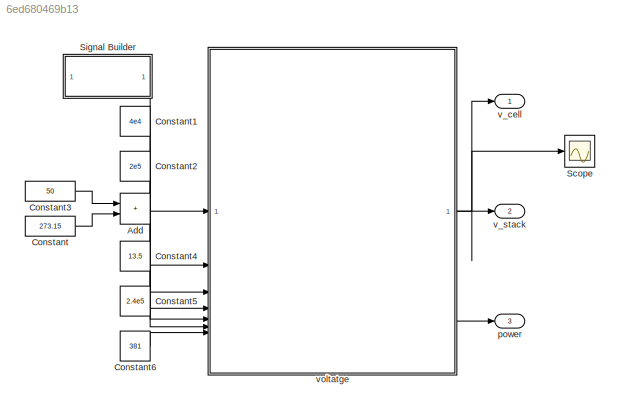
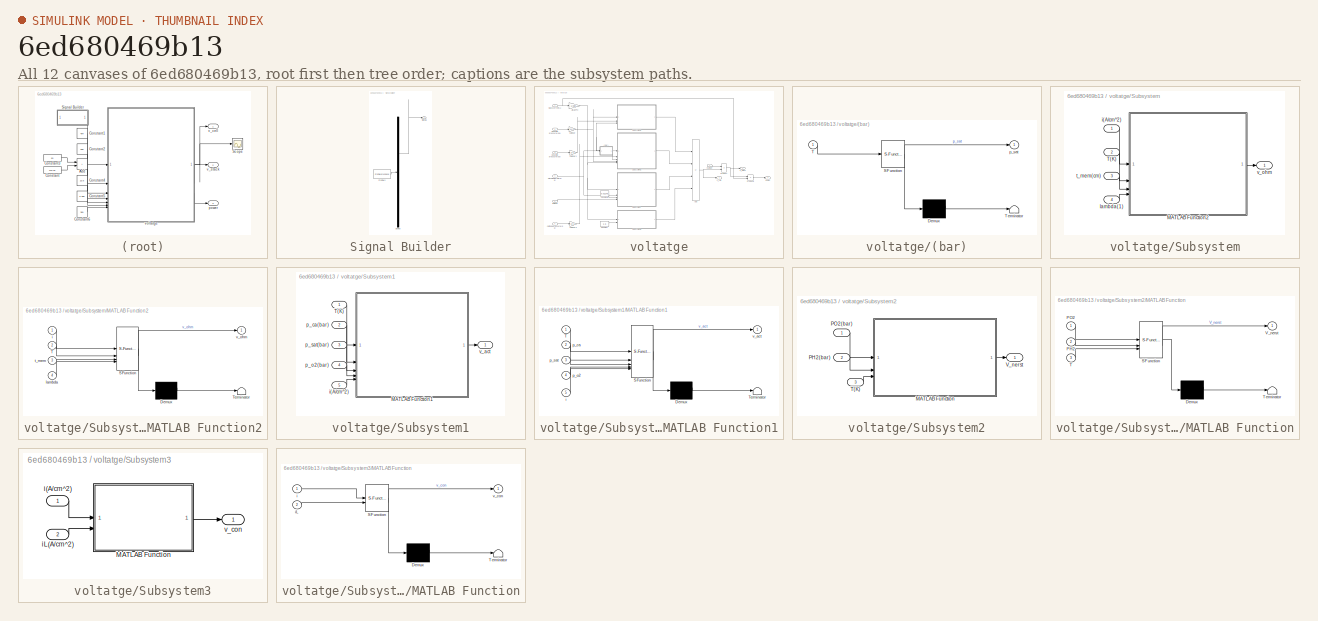
[diagram: thumbnail index - all 12 canvases of the model, root first then tree order]
MODEL slx_6ed680469b13
KIND model
CONFIG AbsTol = auto
CONFIG EnableMultiTasking = off
CONFIG FixedStep = auto
CONFIG MaxStep = auto
CONFIG MinStep = auto
CONFIG RelTol = 1e-3
CONFIG SampleTimeConstraint = Unconstrained
CONFIG SolverName = VariableStepAuto
CONFIG StartTime = 0.0
CONFIG StopTime = 30
BLOCK [Sum] Add
  IconShape = rectangular
BLOCK [Constant] Constant
  Value = 273.15
BLOCK [Constant] Constant1
  Value = 4e4
BLOCK [Constant] Constant2
  Value = 2e5
BLOCK [Constant] Constant3
  Value = 50
BLOCK [Constant] Constant4
  Value = 13.5
BLOCK [Constant] Constant5
  Value = 2.4e5
BLOCK [Constant] Constant6
  Value = 381
BLOCK [Scope] Scope
  Floating = off
  NumInputPorts = 1
  ScopeSpecificationString = Simulink.scopes.TimeScopeBlockCfg('CurrentConfiguration', extmgr.ConfigurationSet(extmgr.Configuration('Core','General UI',true),extmgr.Configuration('Core','Source UI',true),extmgr.Configuration('Sources','WiredSimulink',true),extmgr.Configuration('Visuals','Time Domain',true,'SerializedDisplays',{struct('MinYLimReal','0.85272','MaxYLimReal','0.96442','YLabelReal','','MinYLimMag','0.85272','MaxYL...<+1330ch>
BLOCK [SubSystem] Signal Builder
  ClipboardFcn = sigbuilder_block('clipboard');
  CloseFcn = sigbuilder_block('close');
  ContinueFcn = sigbuilder_block('continue');
  CopyFcn = sigbuilder_block('copy');
  DeleteFcn = sigbuilder_block('delete');
  LoadFcn = sigbuilder_block('load');
  MaskHideContents = on
  ModelCloseFcn = sigbuilder_block('modelClose');
  NameChangeFcn = sigbuilder_block('namechange');
  OpenFcn = sigbuilder_block('open',[591 193.8 786 400.2 ]);
  PauseFcn = sigbuilder_block('pause');
  PreSaveFcn = sigbuilder_block('preSave');
  StartFcn = sigbuilder_block('start');
  StopFcn = sigbuilder_block('stop');
  Tag = STV Subsys
BLOCK [Demux] Signal Builder/Demux
  DisplayOption = none
  Outputs = 1
  Tag = STV Demux
BLOCK [FromWorkspace] Signal Builder/FromWs
  Tag = STV FromWs
  VariableName = tuvar
BLOCK [Outport] Signal Builder/Signal 1
  Tag = STV Outport
BLOCK [Outport] power
  Port = 3
BLOCK [Outport] v_cell
BLOCK [Outport] v_stack
  Port = 2
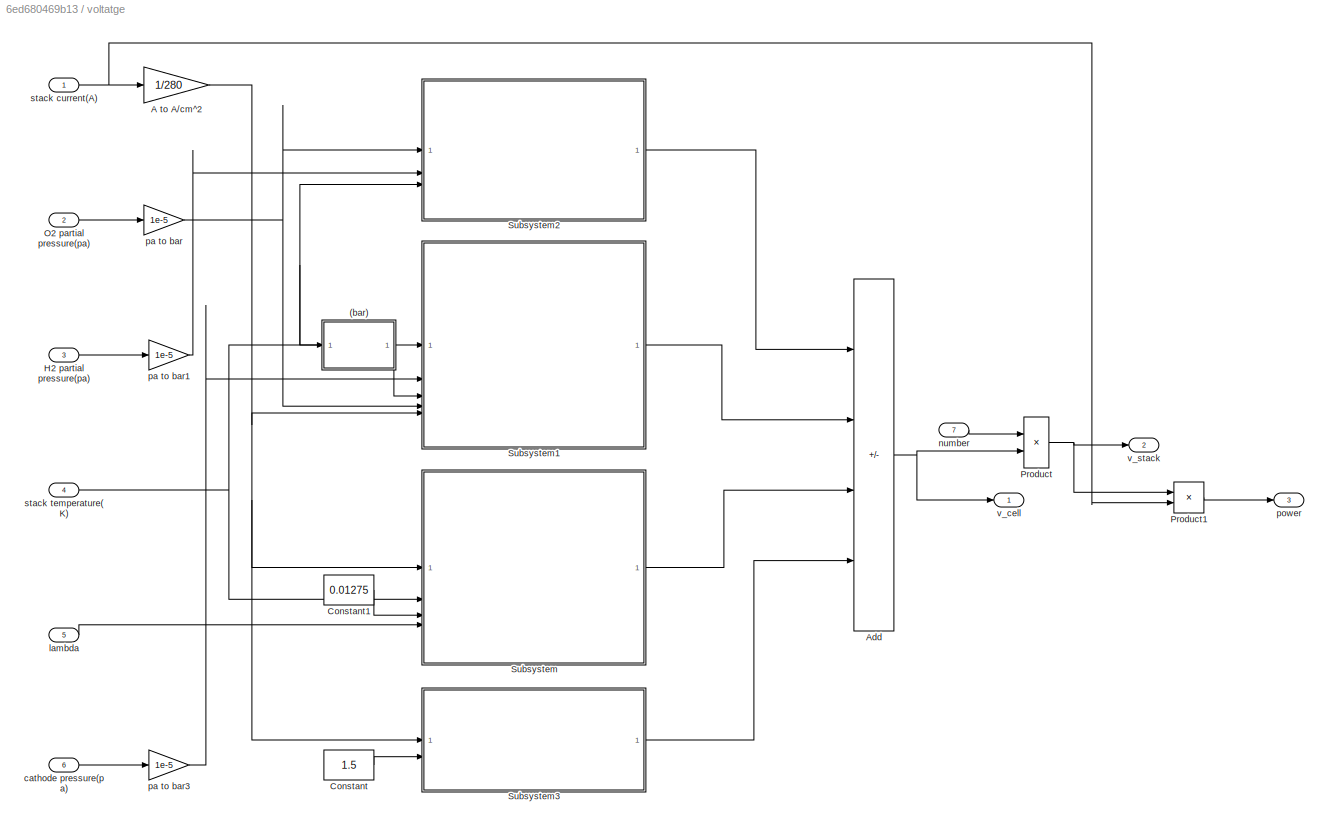
BLOCK [SubSystem] voltatge
BLOCK [SubSystem] voltatge/(bar)
  ErrorFcn = Stateflow.Translate.translate
  PermitHierarchicalResolution = ExplicitOnly
  SFBlockType = MATLAB Function
  TreatAsAtomicUnit = on
BLOCK [Demux] voltatge/(bar)/ Demux 
  Outputs = 1
BLOCK [S-Function] voltatge/(bar)/ SFunction 
  EnableBusSupport = off
  FunctionName = sf_sfun
  PortCounts = [1 2]
  SFcnIsStateOwnerBlock = off
  SFunctionDeploymentMode = off
  Tag = Stateflow S-Function 3
BLOCK [Terminator] voltatge/(bar)/ Terminator 
BLOCK [Inport] voltatge/(bar)/T
BLOCK [Outport] voltatge/(bar)/p_sat
BLOCK [Gain] voltatge/A to A//cm^2
  Gain = 1/280
BLOCK [Sum] voltatge/Add
  IconShape = rectangular
  Inputs = +---
BLOCK [Constant] voltatge/Constant
  Value = 1.5
BLOCK [Constant] voltatge/Constant1
  Value = 0.01275
BLOCK [Inport] voltatge/H2 partial pressure(pa)
  Port = 3
BLOCK [Inport] voltatge/O2 partial pressure(pa)
  Port = 2
BLOCK [Product] voltatge/Product
BLOCK [Product] voltatge/Product1
BLOCK [SubSystem] voltatge/Subsystem
BLOCK [SubSystem] voltatge/Subsystem/MATLAB Function2
  ErrorFcn = Stateflow.Translate.translate
  PermitHierarchicalResolution = ExplicitOnly
  SFBlockType = MATLAB Function
  ShowPortLabels = FromPortBlockName
  TreatAsAtomicUnit = on
BLOCK [Demux] voltatge/Subsystem/MATLAB Function2/ Demux 
  Outputs = 1
BLOCK [S-Function] voltatge/Subsystem/MATLAB Function2/ SFunction 
  EnableBusSupport = off
  FunctionName = sf_sfun
  PortCounts = [4 2]
  SFcnIsStateOwnerBlock = off
  SFunctionDeploymentMode = off
  Tag = Stateflow S-Function 4
BLOCK [Terminator] voltatge/Subsystem/MATLAB Function2/ Terminator 
BLOCK [Inport] voltatge/Subsystem/MATLAB Function2/T
  Port = 2
BLOCK [Inport] voltatge/Subsystem/MATLAB Function2/i
BLOCK [Inport] voltatge/Subsystem/MATLAB Function2/lambda
  Port = 4
BLOCK [Inport] voltatge/Subsystem/MATLAB Function2/t_mem
  Port = 3
BLOCK [Outport] voltatge/Subsystem/MATLAB Function2/v_ohm
BLOCK [Inport] voltatge/Subsystem/T(K)
  Port = 2
BLOCK [Inport] voltatge/Subsystem/i(A//cm^2)
BLOCK [Inport] voltatge/Subsystem/lambda(1)
  Port = 4
BLOCK [Inport] voltatge/Subsystem/t_mem(cm)
  Port = 3
BLOCK [Outport] voltatge/Subsystem/v_ohm
BLOCK [SubSystem] voltatge/Subsystem1
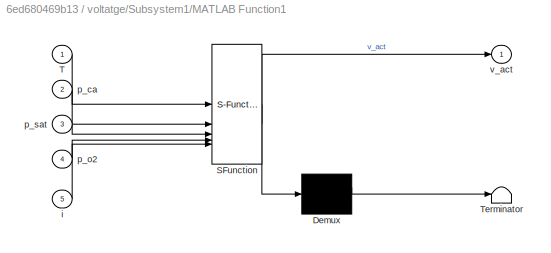
BLOCK [SubSystem] voltatge/Subsystem1/MATLAB Function1
  ErrorFcn = Stateflow.Translate.translate
  PermitHierarchicalResolution = ExplicitOnly
  SFBlockType = MATLAB Function
  TreatAsAtomicUnit = on
BLOCK [Demux] voltatge/Subsystem1/MATLAB Function1/ Demux 
  Outputs = 1
BLOCK [S-Function] voltatge/Subsystem1/MATLAB Function1/ SFunction 
  EnableBusSupport = off
  FunctionName = sf_sfun
  PortCounts = [5 2]
  SFcnIsStateOwnerBlock = off
  SFunctionDeploymentMode = off
  Tag = Stateflow S-Function 1
BLOCK [Terminator] voltatge/Subsystem1/MATLAB Function1/ Terminator 
BLOCK [Inport] voltatge/Subsystem1/MATLAB Function1/T
BLOCK [Inport] voltatge/Subsystem1/MATLAB Function1/i
  Port = 5
BLOCK [Inport] voltatge/Subsystem1/MATLAB Function1/p_ca
  Port = 2
BLOCK [Inport] voltatge/Subsystem1/MATLAB Function1/p_o2
  Port = 4
BLOCK [Inport] voltatge/Subsystem1/MATLAB Function1/p_sat
  Port = 3
BLOCK [Outport] voltatge/Subsystem1/MATLAB Function1/v_act
BLOCK [Inport] voltatge/Subsystem1/T(K)
BLOCK [Inport] voltatge/Subsystem1/i(A//cm^2)
  Port = 5
BLOCK [Inport] voltatge/Subsystem1/p_ca(bar)
  Port = 2
BLOCK [Inport] voltatge/Subsystem1/p_o2(bar)
  Port = 4
BLOCK [Inport] voltatge/Subsystem1/p_sat(bar)
  Port = 3
BLOCK [Outport] voltatge/Subsystem1/v_act
BLOCK [SubSystem] voltatge/Subsystem2
BLOCK [SubSystem] voltatge/Subsystem2/MATLAB Function
  ErrorFcn = Stateflow.Translate.translate
  PermitHierarchicalResolution = ExplicitOnly
  SFBlockType = MATLAB Function
  ShowPortLabels = SignalName
  TreatAsAtomicUnit = on
BLOCK [Demux] voltatge/Subsystem2/MATLAB Function/ Demux 
  Outputs = 1
BLOCK [S-Function] voltatge/Subsystem2/MATLAB Function/ SFunction 
  EnableBusSupport = off
  FunctionName = sf_sfun
  PortCounts = [3 2]
  SFcnIsStateOwnerBlock = off
  SFunctionDeploymentMode = off
  Tag = Stateflow S-Function 2
BLOCK [Terminator] voltatge/Subsystem2/MATLAB Function/ Terminator 
BLOCK [Inport] voltatge/Subsystem2/MATLAB Function/PH2
  Port = 2
BLOCK [Inport] voltatge/Subsystem2/MATLAB Function/PO2
BLOCK [Inport] voltatge/Subsystem2/MATLAB Function/T
  Port = 3
BLOCK [Outport] voltatge/Subsystem2/MATLAB Function/V_nerst
BLOCK [Inport] voltatge/Subsystem2/PH2(bar)
  Port = 2
BLOCK [Inport] voltatge/Subsystem2/PO2(bar)
BLOCK [Inport] voltatge/Subsystem2/T(K)
  Port = 3
BLOCK [Outport] voltatge/Subsystem2/V_nerst
BLOCK [SubSystem] voltatge/Subsystem3
BLOCK [SubSystem] voltatge/Subsystem3/MATLAB Function
  ErrorFcn = Stateflow.Translate.translate
  PermitHierarchicalResolution = ExplicitOnly
  SFBlockType = MATLAB Function
  TreatAsAtomicUnit = on
BLOCK [Demux] voltatge/Subsystem3/MATLAB Function/ Demux 
  Outputs = 1
BLOCK [S-Function] voltatge/Subsystem3/MATLAB Function/ SFunction 
  EnableBusSupport = off
  FunctionName = sf_sfun
  PortCounts = [2 2]
  SFcnIsStateOwnerBlock = off
  SFunctionDeploymentMode = off
  Tag = Stateflow S-Function 5
BLOCK [Terminator] voltatge/Subsystem3/MATLAB Function/ Terminator 
BLOCK [Inport] voltatge/Subsystem3/MATLAB Function/i
BLOCK [Inport] voltatge/Subsystem3/MATLAB Function/iL
  Port = 2
BLOCK [Outport] voltatge/Subsystem3/MATLAB Function/v_con
BLOCK [Inport] voltatge/Subsystem3/i(A//cm^2)
BLOCK [Inport] voltatge/Subsystem3/iL(A//cm^2)
  Port = 2
BLOCK [Outport] voltatge/Subsystem3/v_con
BLOCK [Inport] voltatge/cathode pressure(pa)
  Port = 6
BLOCK [Inport] voltatge/lambda
  Port = 5
BLOCK [Inport] voltatge/number
  Port = 7
BLOCK [Gain] voltatge/pa to bar
  Gain = 1e-5
BLOCK [Gain] voltatge/pa to bar1
  Gain = 1e-5
BLOCK [Gain] voltatge/pa to bar3
  Gain = 1e-5
BLOCK [Outport] voltatge/power
  Port = 3
BLOCK [Inport] voltatge/stack current(A)
BLOCK [Inport] voltatge/stack temperature(K)
  Port = 4
BLOCK [Outport] voltatge/v_cell
BLOCK [Outport] voltatge/v_stack
  Port = 2
LINE Add:1 -> voltatge:4
LINE Constant1:1 -> voltatge:2
LINE Constant2:1 -> voltatge:3
LINE Constant3:1 -> Add:1
LINE Constant4:1 -> voltatge:5
LINE Constant5:1 -> voltatge:6
LINE Constant6:1 -> voltatge:7
LINE Constant:1 -> Add:2
LINE Signal Builder:1 -> voltatge:1
LINE voltatge/(bar):1 -> voltatge/Subsystem1:3
NET voltatge/A to A//cm^2:1 -> voltatge/Subsystem1:5, voltatge/Subsystem3:1, voltatge/Subsystem:1
NET voltatge/Add:1 -> voltatge/Product:2, voltatge/v_cell:1
LINE voltatge/Constant1:1 -> voltatge/Subsystem:3
LINE voltatge/Constant:1 -> voltatge/Subsystem3:2
LINE voltatge/H2 partial pressure(pa):1 -> voltatge/pa to bar1:1
LINE voltatge/O2 partial pressure(pa):1 -> voltatge/pa to bar:1
LINE voltatge/Product1:1 -> voltatge/power:1
NET voltatge/Product:1 -> voltatge/Product1:1, voltatge/v_stack:1
LINE voltatge/Subsystem/MATLAB Function2:1 -> voltatge/Subsystem/v_ohm:1
LINE voltatge/Subsystem/T(K):1 -> voltatge/Subsystem/MATLAB Function2:2
LINE voltatge/Subsystem/i(A//cm^2):1 -> voltatge/Subsystem/MATLAB Function2:1
LINE voltatge/Subsystem/lambda(1):1 -> voltatge/Subsystem/MATLAB Function2:4
LINE voltatge/Subsystem/t_mem(cm):1 -> voltatge/Subsystem/MATLAB Function2:3
LINE voltatge/Subsystem1/MATLAB Function1:1 -> voltatge/Subsystem1/v_act:1
LINE voltatge/Subsystem1/T(K):1 -> voltatge/Subsystem1/MATLAB Function1:1
LINE voltatge/Subsystem1/i(A//cm^2):1 -> voltatge/Subsystem1/MATLAB Function1:5
LINE voltatge/Subsystem1/p_ca(bar):1 -> voltatge/Subsystem1/MATLAB Function1:2
LINE voltatge/Subsystem1/p_o2(bar):1 -> voltatge/Subsystem1/MATLAB Function1:4
LINE voltatge/Subsystem1/p_sat(bar):1 -> voltatge/Subsystem1/MATLAB Function1:3
LINE voltatge/Subsystem1:1 -> voltatge/Add:2
LINE voltatge/Subsystem2/MATLAB Function:1 -> voltatge/Subsystem2/V_nerst:1
LINE voltatge/Subsystem2/PH2(bar):1 -> voltatge/Subsystem2/MATLAB Function:2
LINE voltatge/Subsystem2/PO2(bar):1 -> voltatge/Subsystem2/MATLAB Function:1
LINE voltatge/Subsystem2/T(K):1 -> voltatge/Subsystem2/MATLAB Function:3
LINE voltatge/Subsystem2:1 -> voltatge/Add:1
LINE voltatge/Subsystem3/MATLAB Function:1 -> voltatge/Subsystem3/v_con:1
LINE voltatge/Subsystem3/i(A//cm^2):1 -> voltatge/Subsystem3/MATLAB Function:1
LINE voltatge/Subsystem3/iL(A//cm^2):1 -> voltatge/Subsystem3/MATLAB Function:2
LINE voltatge/Subsystem3:1 -> voltatge/Add:4
LINE voltatge/Subsystem:1 -> voltatge/Add:3
LINE voltatge/cathode pressure(pa):1 -> voltatge/pa to bar3:1
LINE voltatge/lambda:1 -> voltatge/Subsystem:4
LINE voltatge/number:1 -> voltatge/Product:1
LINE voltatge/pa to bar1:1 -> voltatge/Subsystem2:2
LINE voltatge/pa to bar3:1 -> voltatge/Subsystem1:2
NET voltatge/pa to bar:1 -> voltatge/Subsystem1:4, voltatge/Subsystem2:1
NET voltatge/stack current(A):1 -> voltatge/A to A//cm^2:1, voltatge/Product1:2
NET voltatge/stack temperature(K):1 -> voltatge/(bar):1, voltatge/Subsystem1:1, voltatge/Subsystem2:3, voltatge/Subsystem:2
NET voltatge:1 -> Scope:1, v_cell:1
LINE voltatge:2 -> v_stack:1
LINE voltatge:3 -> power:1
note: NET lines group one-source signal fan-out (src -> all destinations, sorted); 1:1 wires keep LINE
CHART voltatge/Subsystem1/MATLAB Function1 states=1 transitions=1
  STATE_LABEL 'eML_blk_kernel()'
  STATE_LABEL 'SCRIPT:\nfunction v_act = active(T,p_ca,p_sat,p_o2,i)\n\nv0 = 0.279-8.5e-4*(T-298.15)+4.308e-5*T*(log((p_ca-p_sat)/1.01325)+0.5*log(0.1173*(p_ca-p_sat)/1.01325));\n\nva = (-1.618e-5*T + 1.618e-2)*(p_o2/0.1173+p_sat)^2 + (1.8e-4*T-0.166)*(p_o2/0.1173+p_sat) + (-5.8e-4*T+0.5736);\n\nc1 = 10;\nv_act = v0 + va*(1-exp(-c1*i));\n\n\n\n\n\n'
CHART voltatge/Subsystem2/MATLAB Function states=1 transitions=1
  STATE_LABEL 'eML_blk_kernel()'
  STATE_LABEL 'SCRIPT:\nfunction V_nerst = nerst(PO2,PH2,T )\n\nV_nerst = 1.229-8.5*10^(-4)*(T-298.15)+4.3085*10^(-5)*T*(log(PH2)+0.5*log(PO2));\n'
CHART voltatge/(bar) states=1 transitions=1
  STATE_LABEL 'eML_blk_kernel()'
  STATE_LABEL 'SCRIPT:\nfunction p_sat = saturation(T)\np_sat = exp(23.196-3816.44/(T-46.13))*1e-5;'
CHART voltatge/Subsystem/MATLAB Function2 states=1 transitions=1
  STATE_LABEL 'eML_blk_kernel()'
  STATE_LABEL 'SCRIPT:\nfunction v_ohm = ohm(i, T , t_mem, lambda)\n\nsigma_m = (0.514*lambda - 0.033)*exp(1268*(1/303-1/T));\n\nR_m = t_mem/sigma_m;\n\nR_c = 0;\n\nv_ohm = i*(R_m+R_c);\n'
CHART voltatge/Subsystem3/MATLAB Function states=1 transitions=1
  STATE_LABEL 'eML_blk_kernel()'
  STATE_LABEL 'SCRIPT:\nfunction v_con = concentration(i,iL)\nB=0.016;\nv_con = B*log(iL/(iL-i));'
CHART  states=0 transitions=0
CHART  states=0 transitions=0
CHART  states=0 transitions=0
CHART  states=0 transitions=0
CHART  states=0 transitions=0
